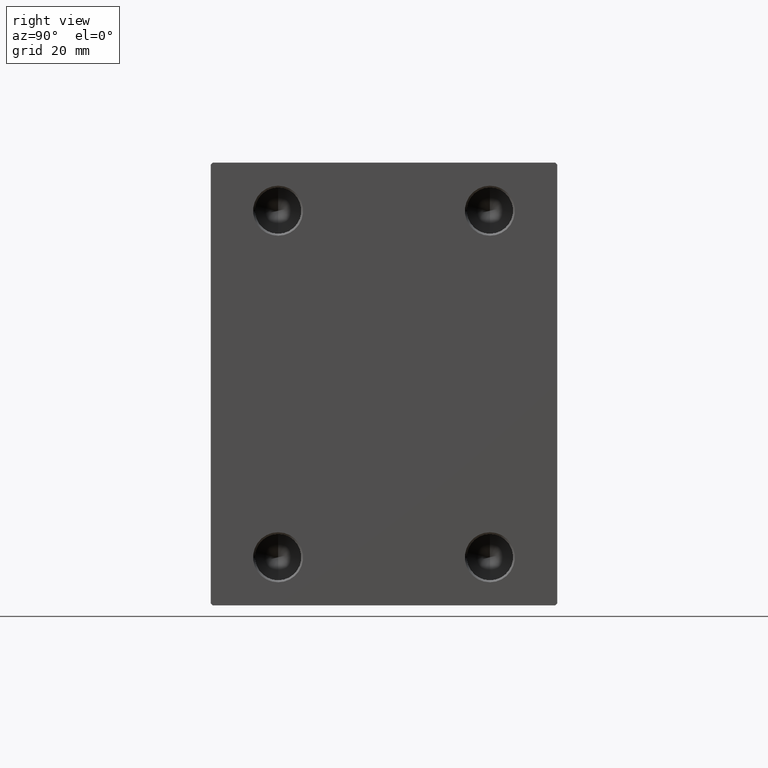
[diagram: clean part render]
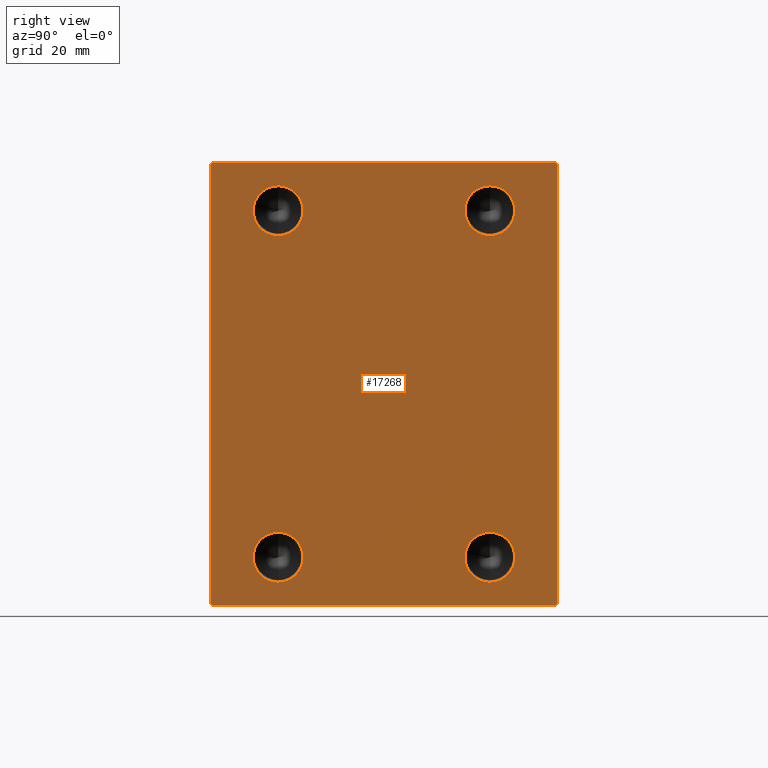
[diagram: same view with one face highlighted and labeled with its STEP entity id]
A machine part, right view. The second image highlights one B-rep face of the part: STEP entity #17268.
In plain terms, the highlighted planar face has unit normal (1, 0, 0).
Its self-contained STEP definition (entity closure, byte-faithful):
#231 = LINE ( 'NONE', #13948, #28469 ) ;
#526 = EDGE_CURVE ( 'NONE', #15239, #3732, #6582, .T. ) ;
#956 = EDGE_LOOP ( 'NONE', ( #6211, #43992 ) ) ;
#1066 = CARTESIAN_POINT ( 'NONE',  ( 108.0000000000000000, 27.50000000000000355, 44.99999999999998579 ) ) ;
#1422 = FACE_BOUND ( 'NONE', #37404, .T. ) ;
#1457 = EDGE_CURVE ( 'NONE', #26653, #17788, #8242, .T. ) ;
#1797 = CARTESIAN_POINT ( 'NONE',  ( 108.0000000000000000, 44.50000000000002842, -57.49999999999999289 ) ) ;
#2054 = DIRECTION ( 'NONE',  ( 1.000000000000000000, -0.000000000000000000, -0.000000000000000000 ) ) ;
#2083 = PLANE ( 'NONE',  #32202 ) ;
#2119 = ORIENTED_EDGE ( 'NONE', *, *, #42583, .T. ) ;
#2161 = CARTESIAN_POINT ( 'NONE',  ( 108.0000000000000000, -45.00000000000000000, 56.99999999999999289 ) ) ;
#2177 = LINE ( 'NONE', #33196, #37058 ) ;
#2834 = CARTESIAN_POINT ( 'NONE',  ( 108.0000000000000000, -27.49999999999999645, -51.50000000000002132 ) ) ;
#3199 = CARTESIAN_POINT ( 'NONE',  ( 108.0000000000000000, -27.49999999999999645, -45.00000000000001421 ) ) ;
#3269 = DIRECTION ( 'NONE',  ( 0.000000000000000000, 0.000000000000000000, -1.000000000000000000 ) ) ;
#3732 = VERTEX_POINT ( 'NONE', #2161 ) ;
#4009 = CIRCLE ( 'NONE', #26973, 6.500000000000005329 ) ;
#4394 = EDGE_CURVE ( 'NONE', #14910, #6502, #16823, .T. ) ;
#4710 = CIRCLE ( 'NONE', #29128, 6.500000000000005329 ) ;
#5905 = VERTEX_POINT ( 'NONE', #18446 ) ;
#5963 = DIRECTION ( 'NONE',  ( 0.000000000000000000, 0.000000000000000000, -1.000000000000000000 ) ) ;
#6085 = LINE ( 'NONE', #16213, #14341 ) ;
#6211 = ORIENTED_EDGE ( 'NONE', *, *, #11625, .F. ) ;
#6359 = CARTESIAN_POINT ( 'NONE',  ( 108.0000000000000000, 0.000000000000000000, 0.000000000000000000 ) ) ;
#6428 = DIRECTION ( 'NONE',  ( 1.000000000000000000, -0.000000000000000000, -0.000000000000000000 ) ) ;
#6502 = VERTEX_POINT ( 'NONE', #34234 ) ;
#6582 = LINE ( 'NONE', #36910, #42673 ) ;
#6660 = DIRECTION ( 'NONE',  ( 1.000000000000000000, -0.000000000000000000, -0.000000000000000000 ) ) ;
#6732 = VERTEX_POINT ( 'NONE', #1797 ) ;
#6983 = AXIS2_PLACEMENT_3D ( 'NONE', #33398, #6660, #3269 ) ;
#7176 = EDGE_CURVE ( 'NONE', #6732, #7353, #25568, .T. ) ;
#7297 = VERTEX_POINT ( 'NONE', #12992 ) ;
#7353 = VERTEX_POINT ( 'NONE', #37031 ) ;
#8242 = CIRCLE ( 'NONE', #16861, 6.500000000000005329 ) ;
#8732 = DIRECTION ( 'NONE',  ( 0.000000000000000000, 0.000000000000000000, -1.000000000000000000 ) ) ;
#9076 = EDGE_CURVE ( 'NONE', #30042, #7297, #4009, .T. ) ;
#9342 = VECTOR ( 'NONE', #37675, 1000.000000000000000 ) ;
#9423 = LINE ( 'NONE', #16171, #41196 ) ;
#9439 = EDGE_CURVE ( 'NONE', #5905, #17727, #2177, .T. ) ;
#9505 = DIRECTION ( 'NONE',  ( 1.000000000000000000, -0.000000000000000000, -0.000000000000000000 ) ) ;
#9775 = ORIENTED_EDGE ( 'NONE', *, *, #34124, .T. ) ;
#10247 = VERTEX_POINT ( 'NONE', #23974 ) ;
#10468 = ORIENTED_EDGE ( 'NONE', *, *, #39784, .T. ) ;
#10712 = LINE ( 'NONE', #37453, #9342 ) ;
#10853 = CARTESIAN_POINT ( 'NONE',  ( 108.0000000000000000, -44.50000000000002842, -57.49999999999999289 ) ) ;
#11625 = EDGE_CURVE ( 'NONE', #24319, #36945, #38541, .T. ) ;
#12201 = CIRCLE ( 'NONE', #16507, 6.500000000000005329 ) ;
#12624 = DIRECTION ( 'NONE',  ( 1.000000000000000000, -0.000000000000000000, -0.000000000000000000 ) ) ;
#12992 = CARTESIAN_POINT ( 'NONE',  ( 108.0000000000000000, 27.50000000000000355, 51.49999999999999289 ) ) ;
#13948 = CARTESIAN_POINT ( 'NONE',  ( 108.0000000000000000, -45.00000000000000000, 57.49999999999999289 ) ) ;
#14341 = VECTOR ( 'NONE', #23388, 1000.000000000000114 ) ;
#14854 = DIRECTION ( 'NONE',  ( 0.000000000000000000, 0.000000000000000000, -1.000000000000000000 ) ) ;
#14910 = VERTEX_POINT ( 'NONE', #43389 ) ;
#15239 = VERTEX_POINT ( 'NONE', #34773 ) ;
#15332 = EDGE_LOOP ( 'NONE', ( #10468, #38624, #9775, #35809, #33092, #31373, #2119, #26661 ) ) ;
#15808 = FACE_BOUND ( 'NONE', #956, .T. ) ;
#15988 = DIRECTION ( 'NONE',  ( 0.000000000000000000, -1.000000000000000000, -1.541976423090495140E-16 ) ) ;
#16171 = CARTESIAN_POINT ( 'NONE',  ( 108.0000000000000000, -45.00000000000000000, -57.49999999999999289 ) ) ;
#16213 = CARTESIAN_POINT ( 'NONE',  ( 108.0000000000000000, -51.00000000000000711, -51.00000000000000711 ) ) ;
#16507 = AXIS2_PLACEMENT_3D ( 'NONE', #37221, #6428, #23946 ) ;
#16823 = CIRCLE ( 'NONE', #42638, 6.500000000000005329 ) ;
#16861 = AXIS2_PLACEMENT_3D ( 'NONE', #3199, #9505, #26346 ) ;
#16890 = VECTOR ( 'NONE', #18825, 1000.000000000000114 ) ;
#17268 = ADVANCED_FACE ( 'NONE', ( #1422, #28835, #25455, #15808, #23660 ), #2083, .T. ) ;
#17698 = CARTESIAN_POINT ( 'NONE',  ( 108.0000000000000000, 44.50000000000001421, 57.50000000000000711 ) ) ;
#17727 = VERTEX_POINT ( 'NONE', #17698 ) ;
#17788 = VERTEX_POINT ( 'NONE', #22159 ) ;
#18027 = CIRCLE ( 'NONE', #43857, 6.500000000000005329 ) ;
#18446 = CARTESIAN_POINT ( 'NONE',  ( 108.0000000000000000, 45.00000000000001421, 57.00000000000000711 ) ) ;
#18825 = DIRECTION ( 'NONE',  ( -0.000000000000000000, 0.7071067811865474617, 0.7071067811865474617 ) ) ;
#18988 = CARTESIAN_POINT ( 'NONE',  ( 108.0000000000000000, 27.50000000000000355, -51.50000000000002132 ) ) ;
#20262 = EDGE_CURVE ( 'NONE', #6502, #14910, #18027, .T. ) ;
#20574 = EDGE_CURVE ( 'NONE', #37923, #6732, #9423, .T. ) ;
#21799 = CARTESIAN_POINT ( 'NONE',  ( 108.0000000000000000, 27.50000000000000355, 44.99999999999998579 ) ) ;
#22159 = CARTESIAN_POINT ( 'NONE',  ( 108.0000000000000000, -27.49999999999999645, -38.50000000000000711 ) ) ;
#22695 = ORIENTED_EDGE ( 'NONE', *, *, #20262, .F. ) ;
#22987 = ORIENTED_EDGE ( 'NONE', *, *, #1457, .F. ) ;
#23388 = DIRECTION ( 'NONE',  ( -0.000000000000000000, 0.7071067811865474617, -0.7071067811865474617 ) ) ;
#23622 = AXIS2_PLACEMENT_3D ( 'NONE', #26850, #29342, #5963 ) ;
#23660 = FACE_OUTER_BOUND ( 'NONE', #15332, .T. ) ;
#23800 = ORIENTED_EDGE ( 'NONE', *, *, #41759, .F. ) ;
#23946 = DIRECTION ( 'NONE',  ( 0.000000000000000000, 0.000000000000000000, -1.000000000000000000 ) ) ;
#23974 = CARTESIAN_POINT ( 'NONE',  ( 108.0000000000000000, -45.00000000000000000, -57.00000000000002132 ) ) ;
#24319 = VERTEX_POINT ( 'NONE', #40932 ) ;
#25455 = FACE_BOUND ( 'NONE', #40168, .T. ) ;
#25568 = LINE ( 'NONE', #29163, #16890 ) ;
#25870 = DIRECTION ( 'NONE',  ( 0.000000000000000000, 0.000000000000000000, -1.000000000000000000 ) ) ;
#26346 = DIRECTION ( 'NONE',  ( 0.000000000000000000, 0.000000000000000000, -1.000000000000000000 ) ) ;
#26653 = VERTEX_POINT ( 'NONE', #2834 ) ;
#26661 = ORIENTED_EDGE ( 'NONE', *, *, #9439, .T. ) ;
#26850 = CARTESIAN_POINT ( 'NONE',  ( 108.0000000000000000, 27.50000000000000355, -45.00000000000001421 ) ) ;
#26973 = AXIS2_PLACEMENT_3D ( 'NONE', #21799, #39765, #14854 ) ;
#27648 = EDGE_CURVE ( 'NONE', #7297, #30042, #4710, .T. ) ;
#27690 = CARTESIAN_POINT ( 'NONE',  ( 108.0000000000000000, 27.50000000000000355, 38.49999999999997868 ) ) ;
#28417 = CARTESIAN_POINT ( 'NONE',  ( 108.0000000000000000, 45.00000000000001421, 57.50000000000000711 ) ) ;
#28469 = VECTOR ( 'NONE', #8732, 1000.000000000000000 ) ;
#28835 = FACE_BOUND ( 'NONE', #31096, .T. ) ;
#29128 = AXIS2_PLACEMENT_3D ( 'NONE', #1066, #42219, #41559 ) ;
#29163 = CARTESIAN_POINT ( 'NONE',  ( 108.0000000000000000, 51.00000000000000711, -51.00000000000000711 ) ) ;
#29342 = DIRECTION ( 'NONE',  ( 1.000000000000000000, -0.000000000000000000, -0.000000000000000000 ) ) ;
#29500 = DIRECTION ( 'NONE',  ( 1.000000000000000000, 0.000000000000000000, 0.000000000000000000 ) ) ;
#29921 = CARTESIAN_POINT ( 'NONE',  ( 108.0000000000000000, -27.49999999999999645, 44.99999999999998579 ) ) ;
#30042 = VERTEX_POINT ( 'NONE', #27690 ) ;
#30238 = ORIENTED_EDGE ( 'NONE', *, *, #4394, .F. ) ;
#30815 = CIRCLE ( 'NONE', #23622, 6.500000000000005329 ) ;
#31096 = EDGE_LOOP ( 'NONE', ( #30238, #22695 ) ) ;
#31373 = ORIENTED_EDGE ( 'NONE', *, *, #7176, .T. ) ;
#31576 = ORIENTED_EDGE ( 'NONE', *, *, #27648, .F. ) ;
#32202 = AXIS2_PLACEMENT_3D ( 'NONE', #6359, #29500, #40747 ) ;
#33092 = ORIENTED_EDGE ( 'NONE', *, *, #20574, .T. ) ;
#33196 = CARTESIAN_POINT ( 'NONE',  ( 108.0000000000000000, 51.00000000000000711, 51.00000000000000711 ) ) ;
#33314 = DIRECTION ( 'NONE',  ( 0.000000000000000000, -0.7071067811865474617, -0.7071067811865474617 ) ) ;
#33398 = CARTESIAN_POINT ( 'NONE',  ( 108.0000000000000000, 27.50000000000000355, -45.00000000000001421 ) ) ;
#34124 = EDGE_CURVE ( 'NONE', #3732, #10247, #231, .T. ) ;
#34234 = CARTESIAN_POINT ( 'NONE',  ( 108.0000000000000000, -27.49999999999999645, 38.49999999999997868 ) ) ;
#34393 = VECTOR ( 'NONE', #15988, 1000.000000000000000 ) ;
#34773 = CARTESIAN_POINT ( 'NONE',  ( 108.0000000000000000, -44.49999999999997158, 57.49999999999999289 ) ) ;
#35809 = ORIENTED_EDGE ( 'NONE', *, *, #41107, .T. ) ;
#36458 = DIRECTION ( 'NONE',  ( 0.000000000000000000, 0.000000000000000000, -1.000000000000000000 ) ) ;
#36910 = CARTESIAN_POINT ( 'NONE',  ( 108.0000000000000000, -51.00000000000000000, 51.00000000000000000 ) ) ;
#36945 = VERTEX_POINT ( 'NONE', #18988 ) ;
#37031 = CARTESIAN_POINT ( 'NONE',  ( 108.0000000000000000, 45.00000000000002842, -56.99999999999999289 ) ) ;
#37058 = VECTOR ( 'NONE', #43772, 1000.000000000000114 ) ;
#37221 = CARTESIAN_POINT ( 'NONE',  ( 108.0000000000000000, -27.49999999999999645, -45.00000000000001421 ) ) ;
#37404 = EDGE_LOOP ( 'NONE', ( #31576, #39719 ) ) ;
#37453 = CARTESIAN_POINT ( 'NONE',  ( 108.0000000000000000, 45.00000000000002842, -57.49999999999999289 ) ) ;
#37675 = DIRECTION ( 'NONE',  ( 0.000000000000000000, -1.206764157201257045E-16, 1.000000000000000000 ) ) ;
#37923 = VERTEX_POINT ( 'NONE', #10853 ) ;
#38541 = CIRCLE ( 'NONE', #6983, 6.500000000000005329 ) ;
#38624 = ORIENTED_EDGE ( 'NONE', *, *, #526, .T. ) ;
#38760 = LINE ( 'NONE', #28417, #34393 ) ;
#39537 = EDGE_CURVE ( 'NONE', #36945, #24319, #30815, .T. ) ;
#39719 = ORIENTED_EDGE ( 'NONE', *, *, #9076, .F. ) ;
#39765 = DIRECTION ( 'NONE',  ( 1.000000000000000000, -0.000000000000000000, -0.000000000000000000 ) ) ;
#39784 = EDGE_CURVE ( 'NONE', #17727, #15239, #38760, .T. ) ;
#40168 = EDGE_LOOP ( 'NONE', ( #23800, #22987 ) ) ;
#40747 = DIRECTION ( 'NONE',  ( 0.000000000000000000, 0.000000000000000000, -1.000000000000000000 ) ) ;
#40932 = CARTESIAN_POINT ( 'NONE',  ( 108.0000000000000000, 27.50000000000000355, -38.50000000000000711 ) ) ;
#41107 = EDGE_CURVE ( 'NONE', #10247, #37923, #6085, .T. ) ;
#41196 = VECTOR ( 'NONE', #42696, 1000.000000000000000 ) ;
#41559 = DIRECTION ( 'NONE',  ( 0.000000000000000000, 0.000000000000000000, -1.000000000000000000 ) ) ;
#41759 = EDGE_CURVE ( 'NONE', #17788, #26653, #12201, .T. ) ;
#42219 = DIRECTION ( 'NONE',  ( 1.000000000000000000, -0.000000000000000000, -0.000000000000000000 ) ) ;
#42583 = EDGE_CURVE ( 'NONE', #7353, #5905, #10712, .T. ) ;
#42638 = AXIS2_PLACEMENT_3D ( 'NONE', #43419, #2054, #36458 ) ;
#42673 = VECTOR ( 'NONE', #33314, 1000.000000000000114 ) ;
#42696 = DIRECTION ( 'NONE',  ( 0.000000000000000000, 1.000000000000000000, 0.000000000000000000 ) ) ;
#43389 = CARTESIAN_POINT ( 'NONE',  ( 108.0000000000000000, -27.49999999999999645, 51.49999999999999289 ) ) ;
#43419 = CARTESIAN_POINT ( 'NONE',  ( 108.0000000000000000, -27.49999999999999645, 44.99999999999998579 ) ) ;
#43772 = DIRECTION ( 'NONE',  ( -0.000000000000000000, -0.7071067811865474617, 0.7071067811865474617 ) ) ;
#43857 = AXIS2_PLACEMENT_3D ( 'NONE', #29921, #12624, #25870 ) ;
#43992 = ORIENTED_EDGE ( 'NONE', *, *, #39537, .F. ) ;